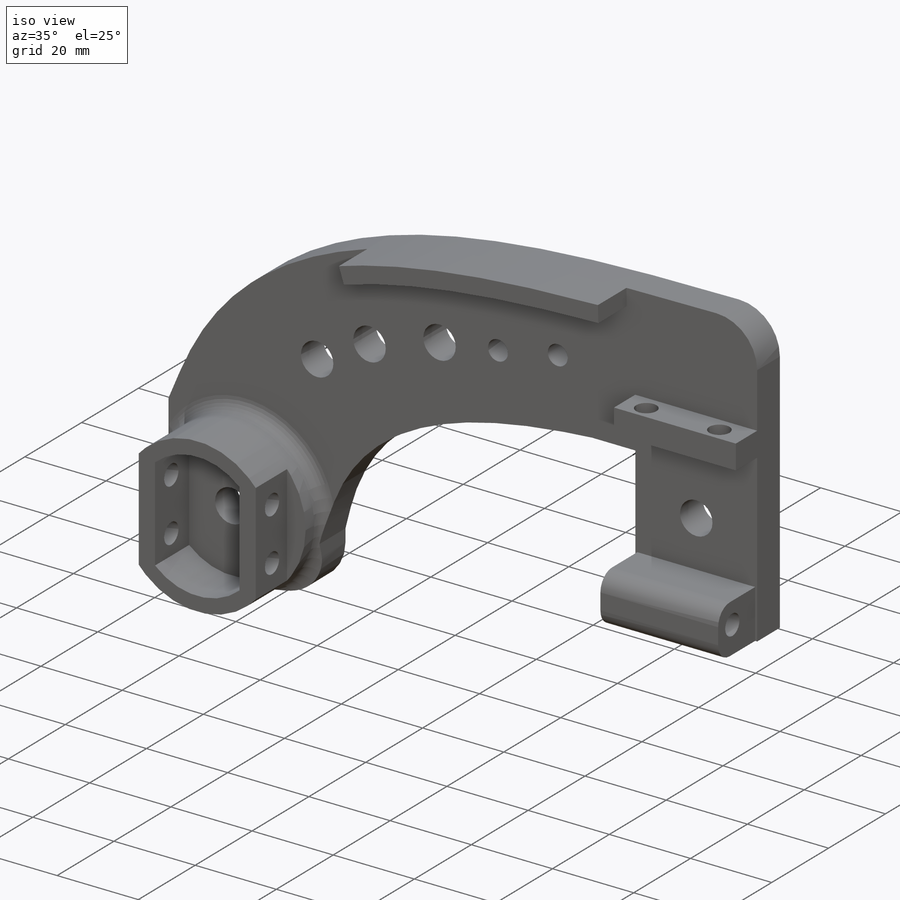
[diagram: iso view]
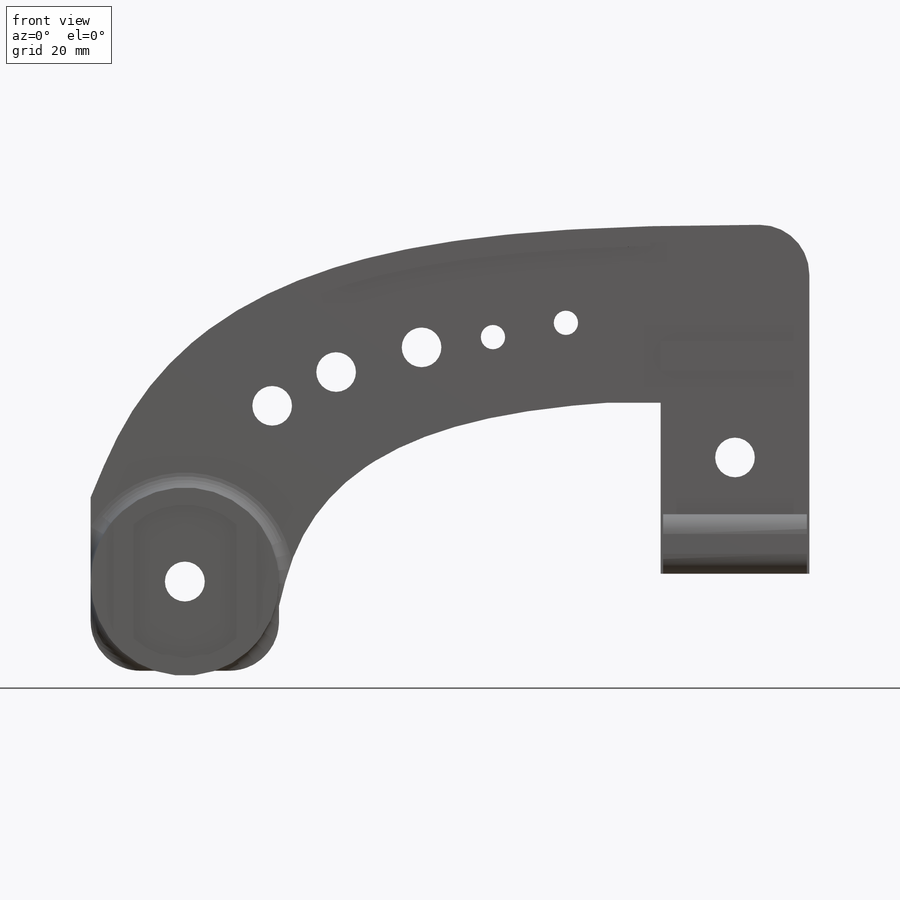
[diagram: front view]
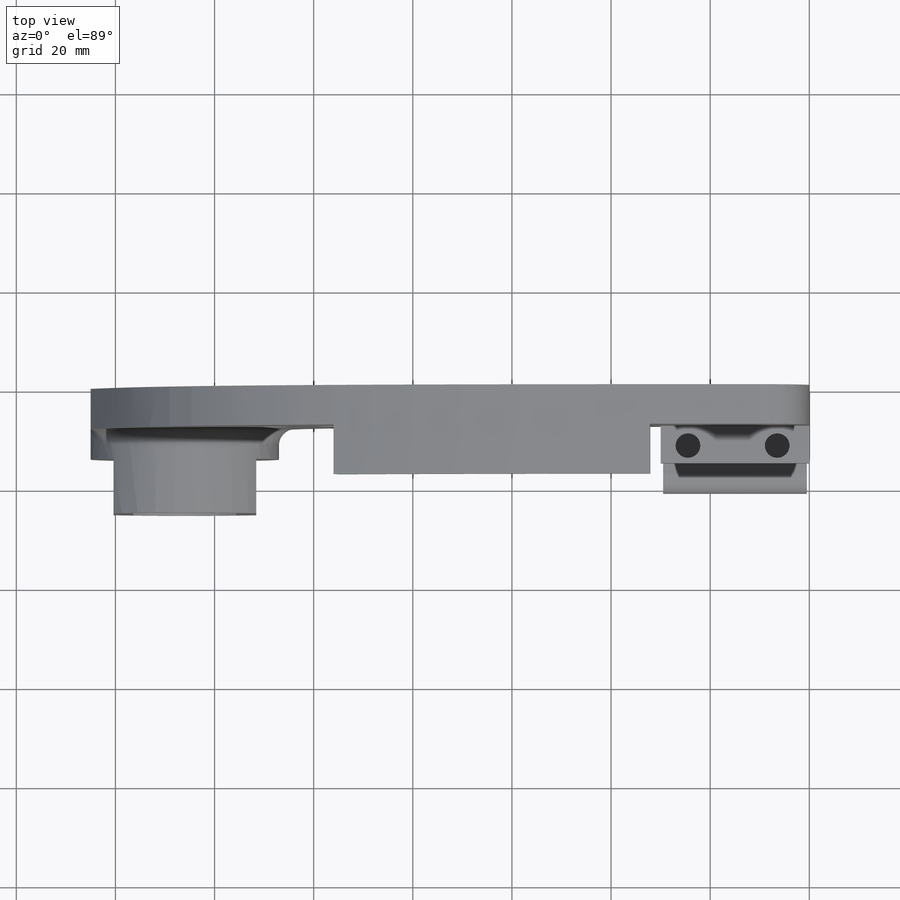
[diagram: top view]
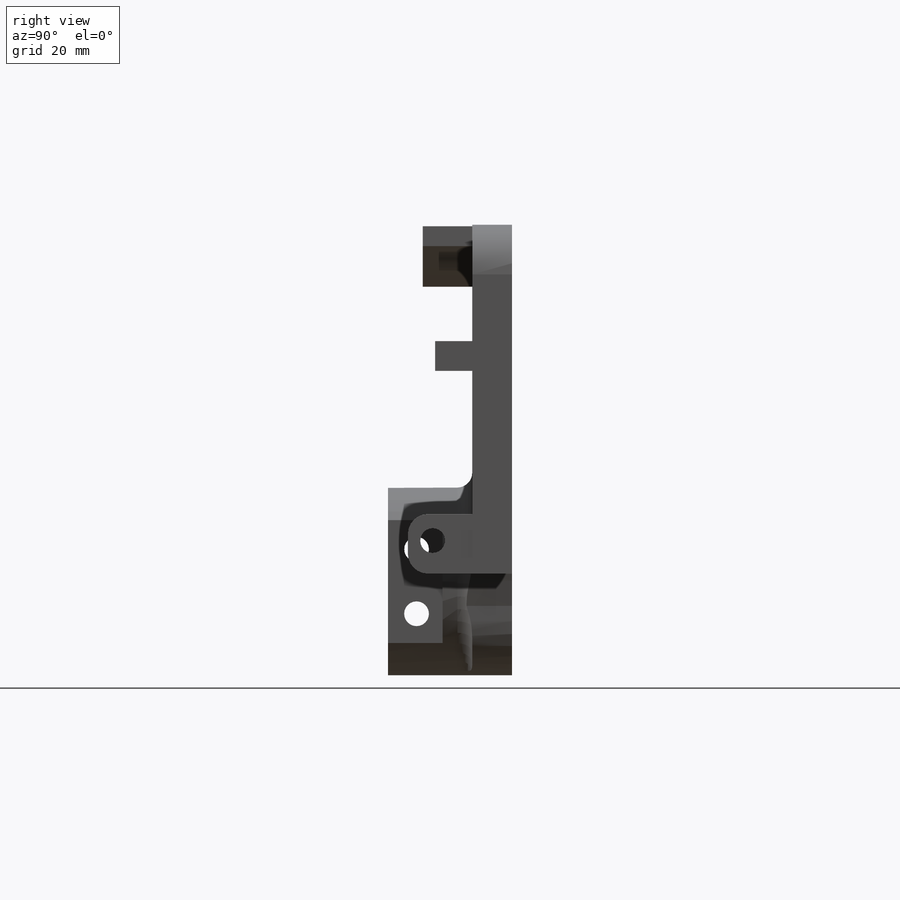
[diagram: right view]
SOLIDWORKS PART (.sldprt)
format: sldprt  version: not decoded by parser v0  size: 625,152 bytes
history: native  units: mm
features: sketch x16, cut_extrude x10, extrude x6, fillet x4, material x1, move_body x1 + 1 further entry (+19 scaffold rows collapsed; 5 parser-record rows omitted)
feature tree (63):
  scaffold x19  (default folders/planes/origin — collapsed)
  material  "PLA Black"
  "bracket bottom"
  parser-record x5  (decoder bookkeeping rows leaked as tree rows — omitted from the tree; the rows remain in map.json)
  move_body  "Body-Move/Copy2"
  sketch  "Sketch2"  dims[D1=0.0mm]
  extrude  "Extrude1"  Depth=8mm
  sketch  "Sketch3"  dims[D1=23.5mm D2=~10.449384mm]
  extrude  "Extrude2"  Depth=7.5mm
  sketch  "Sketch4"  dims[D1=30.0mm D2=34.5mm]
  extrude  "Extrude3"  [1 undecoded]
  sketch  "Sketch5"  dims[D1=12.0mm D2=29.0mm]
  extrude  "Extrude4"  Depth=13mm
  sketch  "Sketch6"  dims[D1=5.0mm D2=8.0mm D3=~6.663438mm]
  cut_extrude  "Extrude5"  [1 undecoded]
  sketch  "Sketch7"  dims[D1=38.0mm D2=18.0mm]
  extrude  "Extrude6"  Depth=17mm
  sketch  "Sketch8"  dims[D1=31.0mm D2=20.8mm]
  cut_extrude  "Extrude7"  Depth=12mm
  sketch  "Sketch9"  dims[D1=5.0mm D2=13.0mm D3=5.75mm]
  cut_extrude  "Extrude8"  Depth=25mm
  sketch  "Sketch10"  dims[D1=4.0mm D2=4.0mm]
  cut_extrude  "Extrude9"  Depth=11mm
  fillet  "Fillet1"  Radius=3mm
  sketch  "Sketch11"  dims[D1=8.05mm]
  cut_extrude  "Extrude10"  [1 undecoded]
  sketch  "Sketch12"  dims[D4=5.0mm D5=5.0mm D1=18.0mm D2=6.5mm D3=3.5mm]
  cut_extrude  "Cut-Extrude1"  Depth=10mm
  fillet  "Fillet2"  Radius=4mm
  fillet  "Fillet3"  Radius=10mm
  fillet  "Fillet4"  Radius=10mm
  sketch  "Sketch13"  dims[D3=8.0mm D1=5.0mm D2=20.0mm]
  cut_extrude  "Extrude11"  [1 undecoded]
  sketch  "Sketch14"  dims[D1=8.0mm]
  cut_extrude  "Extrude12"  Depth=10mm
  sketch  "Sketch15"  dims[D1=17.0mm]
  cut_extrude  "Extrude13"  Depth=6mm
  sketch  "Sketch16"  dims[D1=0.0mm D2=4.0mm]
  extrude  "Extrude15"  Depth=10mm
  sketch  "Sketch17"  dims[D1=4.9mm]
  cut_extrude  "Cut-Extrude2"  Depth=30mm
decode coverage: 32 of 37 modeling features carry decoded parameters; 1 rows unclassified (native names shown)
note: ~ marks probable driven/reference dimensions
note: 4 parameter values undecoded
summary: no parameter record found for 4 features
note: suppression state not decoded; provenance and decode notes live in map.json
